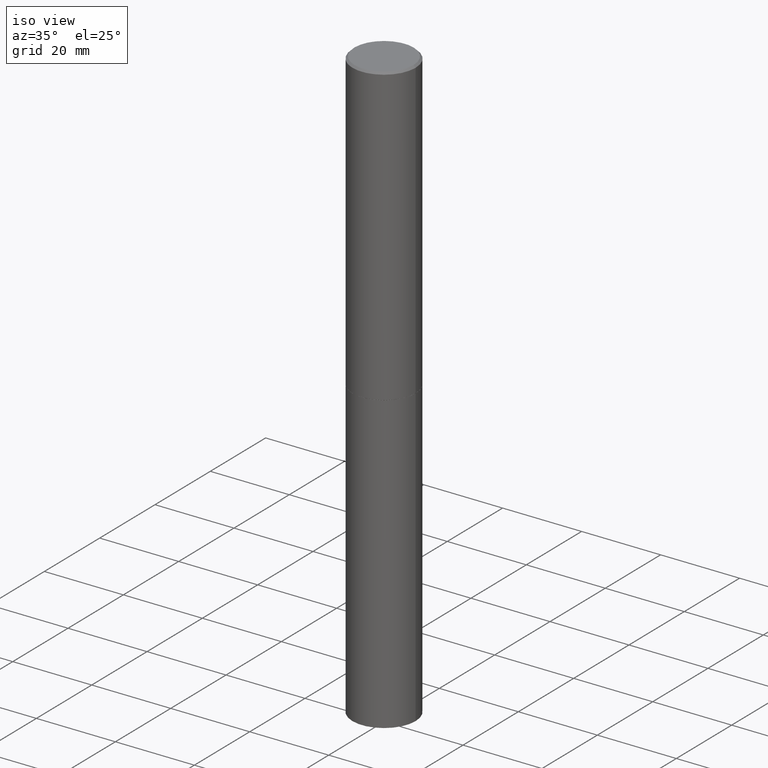
[diagram: clean part render]
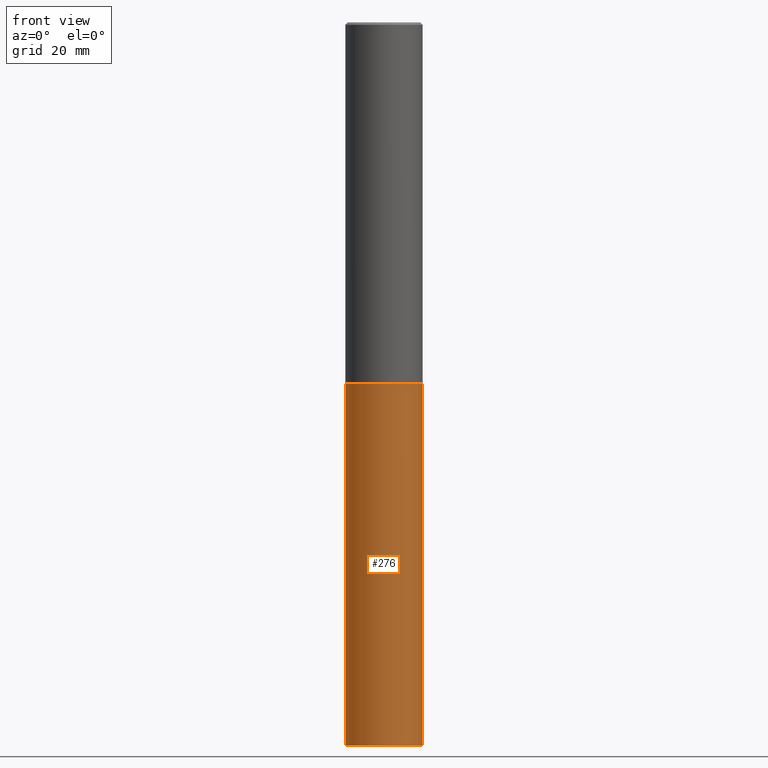
[diagram: tour spotlight — one face highlighted and labeled with its STEP entity id]
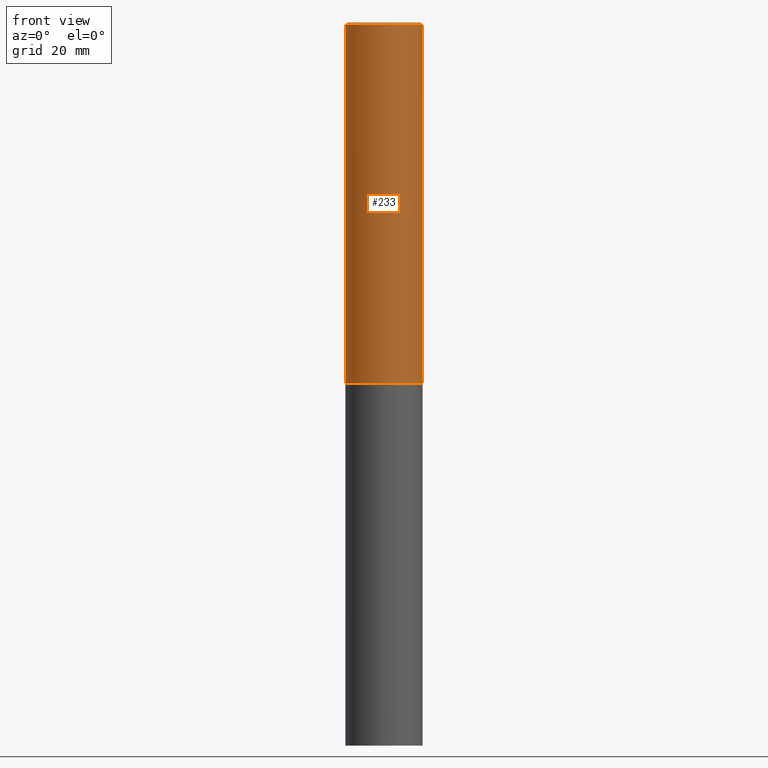
[diagram: tour spotlight — one face highlighted and labeled with its STEP entity id]
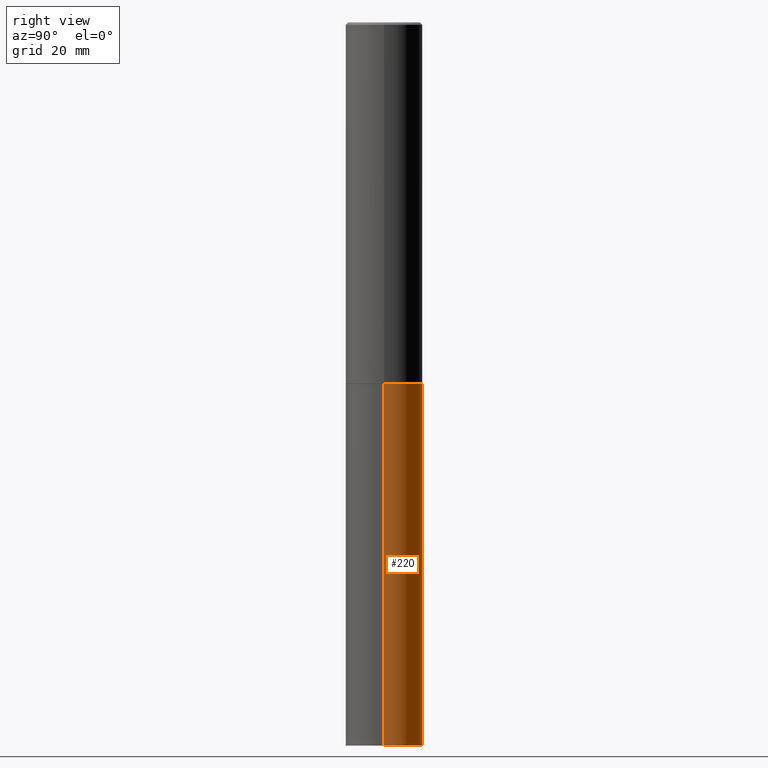
[diagram: tour spotlight — one face highlighted and labeled with its STEP entity id]
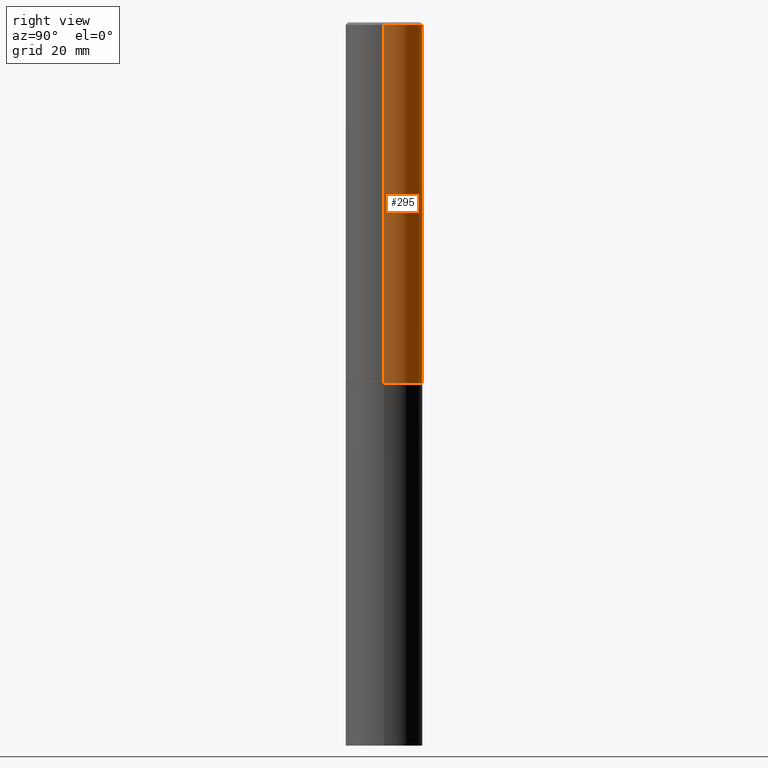
[diagram: tour spotlight — one face highlighted and labeled with its STEP entity id]
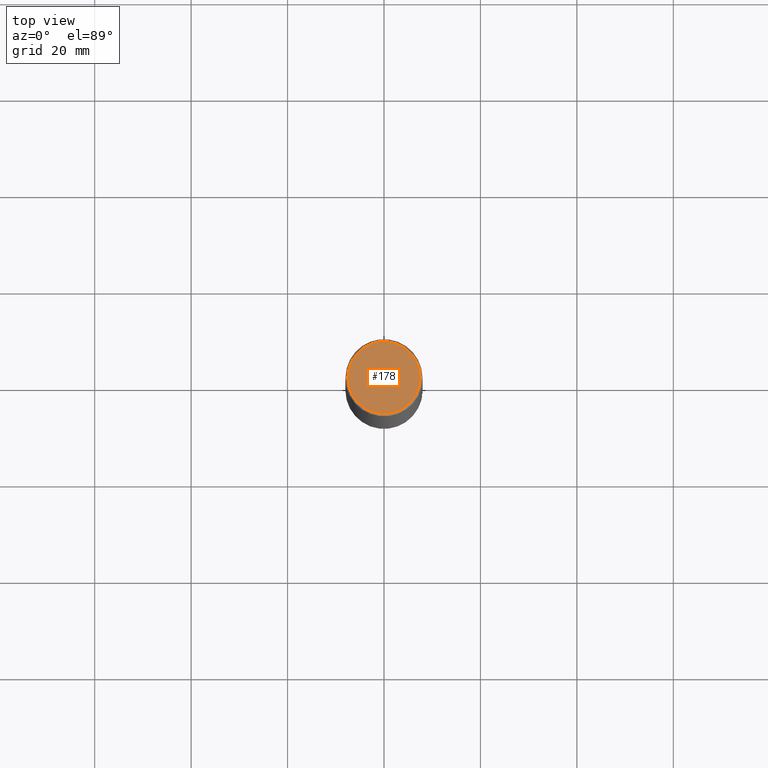
[diagram: tour spotlight — one face highlighted and labeled with its STEP entity id]
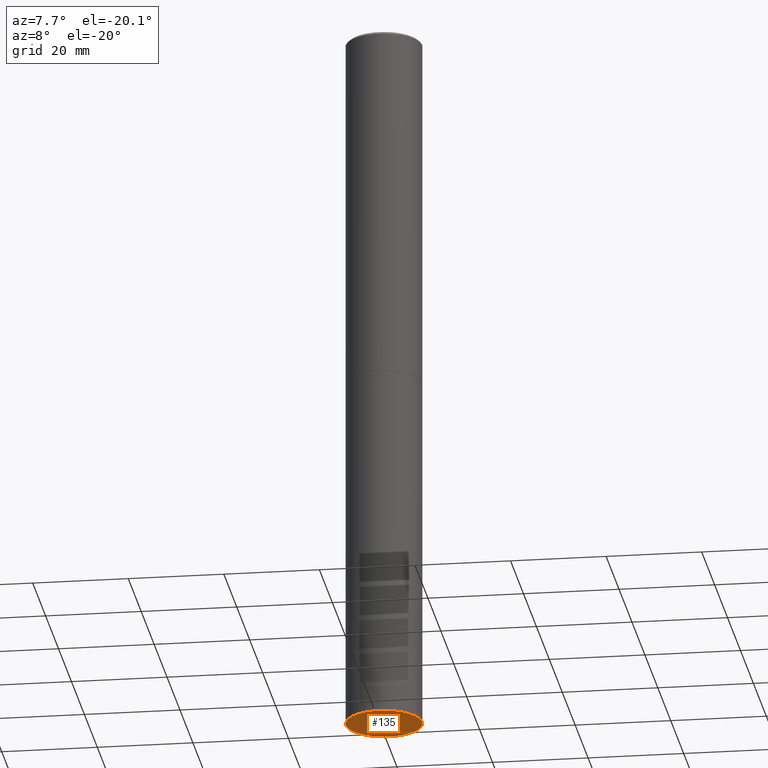
[diagram: tour spotlight — one face highlighted and labeled with its STEP entity id]
A machine part: a face-by-face anatomy tour. The part has 12 B-rep faces; the first image is the clean iso view, then the 6 largest visible faces are spotlighted one at a time (largest first), each with its STEP entity span.

Face 1 — front view, entity #276. In plain terms, the highlighted cylindrical surface (partial cylindrical patch) has radius 7.9997 mm, axis along (-0, 0, 1).
Definition (entity closure, byte-faithful):
#1 = VECTOR ( 'NONE', #200, 39.37007874015748143 ) ;
#6 = CARTESIAN_POINT ( 'NONE',  ( -0.3149500000000000077, 2.237854346276435590E-15, -1.549218606675782676E-29 ) ) ;
#7 = EDGE_CURVE ( 'NONE', #56, #255, #266, .T. ) ;
#16 = FACE_OUTER_BOUND ( 'NONE', #315, .T. ) ;
#19 = DIRECTION ( 'NONE',  ( -2.445468806185136877E-29, 3.491481338843145188E-15, 1.000000000000000000 ) ) ;
#22 = DIRECTION ( 'NONE',  ( 1.000000000000000000, -6.982962677686263555E-15, 0.000000000000000000 ) ) ;
#33 = AXIS2_PLACEMENT_3D ( 'NONE', #242, #218, #100 ) ;
#37 = LINE ( 'NONE', #245, #292 ) ;
#38 = CYLINDRICAL_SURFACE ( 'NONE', #156, 0.3149500000000000077 ) ;
#51 = ORIENTED_EDGE ( 'NONE', *, *, #7, .F. ) ;
#56 = VERTEX_POINT ( 'NONE', #297 ) ;
#84 = ORIENTED_EDGE ( 'NONE', *, *, #340, .F. ) ;
#100 = DIRECTION ( 'NONE',  ( 1.000000000000000000, -6.982962677686263555E-15, 0.000000000000000000 ) ) ;
#105 = CARTESIAN_POINT ( 'NONE',  ( 0.3149500000000000077, -2.281822714187548341E-14, -5.905499999999999972 ) ) ;
#140 = ORIENTED_EDGE ( 'NONE', *, *, #182, .T. ) ;
#156 = AXIS2_PLACEMENT_3D ( 'NONE', #184, #280, #219 ) ;
#167 = DIRECTION ( 'NONE',  ( -2.445468806185136597E-29, 3.491481338843145583E-15, 1.000000000000000000 ) ) ;
#176 = VERTEX_POINT ( 'NONE', #186 ) ;
#182 = EDGE_CURVE ( 'NONE', #272, #176, #37, .T. ) ;
#184 = CARTESIAN_POINT ( 'NONE',  ( 0.000000000000000000, 0.000000000000000000, 0.000000000000000000 ) ) ;
#186 = CARTESIAN_POINT ( 'NONE',  ( 0.3149500000000000077, -1.250858104453944331E-14, -2.952700000000000102 ) ) ;
#188 = EDGE_CURVE ( 'NONE', #56, #272, #336, .T. ) ;
#200 = DIRECTION ( 'NONE',  ( -2.445468806185136877E-29, 3.491481338843145188E-15, 1.000000000000000000 ) ) ;
#212 = CARTESIAN_POINT ( 'NONE',  ( -0.3149500000000000077, -1.322626565159373987E-14, -2.952700000000000102 ) ) ;
#218 = DIRECTION ( 'NONE',  ( -2.445468806185136597E-29, 3.491481338843145583E-15, 1.000000000000000000 ) ) ;
#219 = DIRECTION ( 'NONE',  ( 1.000000000000000000, -6.982962677686266711E-15, 4.876176775795936353E-29 ) ) ;
#229 = CARTESIAN_POINT ( 'NONE',  ( 7.220735744022852519E-29, -1.030929694920215502E-14, -2.952700000000000102 ) ) ;
#236 = AXIS2_PLACEMENT_3D ( 'NONE', #229, #167, #22 ) ;
#242 = CARTESIAN_POINT ( 'NONE',  ( 1.444171603492632270E-28, -2.061894304653819197E-14, -5.905499999999999972 ) ) ;
#245 = CARTESIAN_POINT ( 'NONE',  ( 0.3149500000000000077, -2.199284095337289871E-15, 1.535751875536930130E-29 ) ) ;
#255 = VERTEX_POINT ( 'NONE', #212 ) ;
#266 = LINE ( 'NONE', #6, #1 ) ;
#272 = VERTEX_POINT ( 'NONE', #105 ) ;
#276 = ADVANCED_FACE ( 'NONE', ( #16 ), #38, .T. ) ;
#280 = DIRECTION ( 'NONE',  ( -2.445468806185136597E-29, 3.491481338843145583E-15, 1.000000000000000000 ) ) ;
#292 = VECTOR ( 'NONE', #19, 39.37007874015748143 ) ;
#297 = CARTESIAN_POINT ( 'NONE',  ( -0.3149500000000000077, -1.322626565159373987E-14, -5.905499999999999972 ) ) ;
#305 = CIRCLE ( 'NONE', #236, 0.3149500000000000077 ) ;
#315 = EDGE_LOOP ( 'NONE', ( #51, #366, #140, #84 ) ) ;
#336 = CIRCLE ( 'NONE', #33, 0.3149500000000000077 ) ;
#340 = EDGE_CURVE ( 'NONE', #255, #176, #305, .T. ) ;
#366 = ORIENTED_EDGE ( 'NONE', *, *, #188, .T. ) ;

Face 2 — front view, entity #233. In plain terms, the highlighted cylindrical surface (partial cylindrical patch) has radius 7.9997 mm, axis along (-0, 0, 1).
Definition (entity closure, byte-faithful):
#3 = VECTOR ( 'NONE', #67, 39.37007874015748143 ) ;
#5 = CARTESIAN_POINT ( 'NONE',  ( -0.3149500000000000077, -2.949963201043651274E-15, -2.951700000000000212 ) ) ;
#13 = DIRECTION ( 'NONE',  ( -2.445468806185136877E-29, 3.491481338843145188E-15, 1.000000000000000000 ) ) ;
#25 = ORIENTED_EDGE ( 'NONE', *, *, #364, .T. ) ;
#34 = LINE ( 'NONE', #151, #294 ) ;
#43 = CYLINDRICAL_SURFACE ( 'NONE', #214, 0.3149499999999998967 ) ;
#53 = AXIS2_PLACEMENT_3D ( 'NONE', #139, #193, #259 ) ;
#54 = CARTESIAN_POINT ( 'NONE',  ( -0.3149499999999996747, 2.129454468560424206E-15, -0.02000000000000007327 ) ) ;
#63 = AXIS2_PLACEMENT_3D ( 'NONE', #120, #346, #205 ) ;
#67 = DIRECTION ( 'NONE',  ( -2.445468806185136877E-29, 3.491481338843145188E-15, 1.000000000000000000 ) ) ;
#74 = CARTESIAN_POINT ( 'NONE',  ( 0.000000000000000000, 0.000000000000000000, 0.000000000000000000 ) ) ;
#80 = VERTEX_POINT ( 'NONE', #5 ) ;
#98 = FACE_OUTER_BOUND ( 'NONE', #172, .T. ) ;
#120 = CARTESIAN_POINT ( 'NONE',  ( 4.890937612370290675E-31, -6.982962677686316261E-17, -0.02000000000000007327 ) ) ;
#139 = CARTESIAN_POINT ( 'NONE',  ( 7.218290275216666916E-29, -1.030580546786331359E-14, -2.951700000000000212 ) ) ;
#151 = CARTESIAN_POINT ( 'NONE',  ( -0.3149499999999998967, 2.237854346276434801E-15, -1.549218606675782116E-29 ) ) ;
#154 = EDGE_CURVE ( 'NONE', #362, #170, #352, .T. ) ;
#159 = DIRECTION ( 'NONE',  ( -2.445468806185136597E-29, 3.491481338843145583E-15, 1.000000000000000000 ) ) ;
#165 = EDGE_CURVE ( 'NONE', #80, #362, #34, .T. ) ;
#170 = VERTEX_POINT ( 'NONE', #273 ) ;
#172 = EDGE_LOOP ( 'NONE', ( #194, #25, #333, #317 ) ) ;
#193 = DIRECTION ( 'NONE',  ( -2.445468806185136597E-29, 3.491481338843145583E-15, 1.000000000000000000 ) ) ;
#194 = ORIENTED_EDGE ( 'NONE', *, *, #165, .F. ) ;
#205 = DIRECTION ( 'NONE',  ( 1.000000000000000000, -6.982962677686266711E-15, 0.000000000000000000 ) ) ;
#209 = CIRCLE ( 'NONE', #53, 0.3149500000000000077 ) ;
#211 = CARTESIAN_POINT ( 'NONE',  ( 0.3149499999999998967, -2.199284095337288688E-15, 1.535751875536929289E-29 ) ) ;
#214 = AXIS2_PLACEMENT_3D ( 'NONE', #74, #159, #277 ) ;
#226 = VERTEX_POINT ( 'NONE', #359 ) ;
#233 = ADVANCED_FACE ( 'NONE', ( #98 ), #43, .T. ) ;
#259 = DIRECTION ( 'NONE',  ( 1.000000000000000000, -6.982962677686263555E-15, 0.000000000000000000 ) ) ;
#273 = CARTESIAN_POINT ( 'NONE',  ( 0.3149499999999996747, -2.230543471175005083E-15, -0.02000000000000007327 ) ) ;
#277 = DIRECTION ( 'NONE',  ( 1.000000000000000000, -6.982962677686265922E-15, 4.876176775795935232E-29 ) ) ;
#294 = VECTOR ( 'NONE', #13, 39.37007874015748143 ) ;
#302 = LINE ( 'NONE', #211, #3 ) ;
#317 = ORIENTED_EDGE ( 'NONE', *, *, #154, .F. ) ;
#333 = ORIENTED_EDGE ( 'NONE', *, *, #334, .T. ) ;
#334 = EDGE_CURVE ( 'NONE', #226, #170, #302, .T. ) ;
#346 = DIRECTION ( 'NONE',  ( -2.445468806185136597E-29, 3.491481338843145583E-15, 1.000000000000000000 ) ) ;
#352 = CIRCLE ( 'NONE', #63, 0.3149499999999996747 ) ;
#359 = CARTESIAN_POINT ( 'NONE',  ( 0.3149500000000000077, -1.250508956320060346E-14, -2.951700000000000212 ) ) ;
#362 = VERTEX_POINT ( 'NONE', #54 ) ;
#364 = EDGE_CURVE ( 'NONE', #80, #226, #209, .T. ) ;

Face 3 — right view, entity #220. In plain terms, the highlighted cylindrical surface (partial cylindrical patch) has radius 7.9997 mm, axis along (-0, 0, 1).
Definition (entity closure, byte-faithful):
#1 = VECTOR ( 'NONE', #200, 39.37007874015748143 ) ;
#6 = CARTESIAN_POINT ( 'NONE',  ( -0.3149500000000000077, 2.237854346276435590E-15, -1.549218606675782676E-29 ) ) ;
#7 = EDGE_CURVE ( 'NONE', #56, #255, #266, .T. ) ;
#19 = DIRECTION ( 'NONE',  ( -2.445468806185136877E-29, 3.491481338843145188E-15, 1.000000000000000000 ) ) ;
#37 = LINE ( 'NONE', #245, #292 ) ;
#41 = FACE_OUTER_BOUND ( 'NONE', #341, .T. ) ;
#56 = VERTEX_POINT ( 'NONE', #297 ) ;
#57 = AXIS2_PLACEMENT_3D ( 'NONE', #144, #351, #203 ) ;
#83 = ORIENTED_EDGE ( 'NONE', *, *, #111, .F. ) ;
#103 = CYLINDRICAL_SURFACE ( 'NONE', #343, 0.3149500000000000077 ) ;
#105 = CARTESIAN_POINT ( 'NONE',  ( 0.3149500000000000077, -2.281822714187548341E-14, -5.905499999999999972 ) ) ;
#111 = EDGE_CURVE ( 'NONE', #176, #255, #309, .T. ) ;
#119 = AXIS2_PLACEMENT_3D ( 'NONE', #330, #158, #354 ) ;
#126 = CARTESIAN_POINT ( 'NONE',  ( 0.000000000000000000, 0.000000000000000000, 0.000000000000000000 ) ) ;
#129 = DIRECTION ( 'NONE',  ( -2.445468806185136597E-29, 3.491481338843145583E-15, 1.000000000000000000 ) ) ;
#144 = CARTESIAN_POINT ( 'NONE',  ( 7.220735744022852519E-29, -1.030929694920215502E-14, -2.952700000000000102 ) ) ;
#158 = DIRECTION ( 'NONE',  ( -2.445468806185136597E-29, 3.491481338843145583E-15, 1.000000000000000000 ) ) ;
#176 = VERTEX_POINT ( 'NONE', #186 ) ;
#182 = EDGE_CURVE ( 'NONE', #272, #176, #37, .T. ) ;
#186 = CARTESIAN_POINT ( 'NONE',  ( 0.3149500000000000077, -1.250858104453944331E-14, -2.952700000000000102 ) ) ;
#200 = DIRECTION ( 'NONE',  ( -2.445468806185136877E-29, 3.491481338843145188E-15, 1.000000000000000000 ) ) ;
#203 = DIRECTION ( 'NONE',  ( 1.000000000000000000, -6.982962677686263555E-15, 0.000000000000000000 ) ) ;
#212 = CARTESIAN_POINT ( 'NONE',  ( -0.3149500000000000077, -1.322626565159373987E-14, -2.952700000000000102 ) ) ;
#220 = ADVANCED_FACE ( 'NONE', ( #41 ), #103, .T. ) ;
#228 = EDGE_CURVE ( 'NONE', #272, #56, #304, .T. ) ;
#245 = CARTESIAN_POINT ( 'NONE',  ( 0.3149500000000000077, -2.199284095337289871E-15, 1.535751875536930130E-29 ) ) ;
#255 = VERTEX_POINT ( 'NONE', #212 ) ;
#266 = LINE ( 'NONE', #6, #1 ) ;
#272 = VERTEX_POINT ( 'NONE', #105 ) ;
#292 = VECTOR ( 'NONE', #19, 39.37007874015748143 ) ;
#293 = ORIENTED_EDGE ( 'NONE', *, *, #182, .F. ) ;
#297 = CARTESIAN_POINT ( 'NONE',  ( -0.3149500000000000077, -1.322626565159373987E-14, -5.905499999999999972 ) ) ;
#304 = CIRCLE ( 'NONE', #119, 0.3149500000000000077 ) ;
#309 = CIRCLE ( 'NONE', #57, 0.3149500000000000077 ) ;
#312 = ORIENTED_EDGE ( 'NONE', *, *, #7, .T. ) ;
#318 = ORIENTED_EDGE ( 'NONE', *, *, #228, .T. ) ;
#329 = DIRECTION ( 'NONE',  ( 1.000000000000000000, -6.982962677686266711E-15, 4.876176775795936353E-29 ) ) ;
#330 = CARTESIAN_POINT ( 'NONE',  ( 1.444171603492632270E-28, -2.061894304653819197E-14, -5.905499999999999972 ) ) ;
#341 = EDGE_LOOP ( 'NONE', ( #318, #312, #83, #293 ) ) ;
#343 = AXIS2_PLACEMENT_3D ( 'NONE', #126, #129, #329 ) ;
#351 = DIRECTION ( 'NONE',  ( -2.445468806185136597E-29, 3.491481338843145583E-15, 1.000000000000000000 ) ) ;
#354 = DIRECTION ( 'NONE',  ( 1.000000000000000000, -6.982962677686263555E-15, 0.000000000000000000 ) ) ;

Face 4 — right view, entity #295. In plain terms, the highlighted cylindrical surface (partial cylindrical patch) has radius 7.9997 mm, axis along (-0, 0, 1).
Definition (entity closure, byte-faithful):
#3 = VECTOR ( 'NONE', #67, 39.37007874015748143 ) ;
#4 = ORIENTED_EDGE ( 'NONE', *, *, #334, .F. ) ;
#5 = CARTESIAN_POINT ( 'NONE',  ( -0.3149500000000000077, -2.949963201043651274E-15, -2.951700000000000212 ) ) ;
#12 = DIRECTION ( 'NONE',  ( -2.445468806185136597E-29, 3.491481338843145583E-15, 1.000000000000000000 ) ) ;
#13 = DIRECTION ( 'NONE',  ( -2.445468806185136877E-29, 3.491481338843145188E-15, 1.000000000000000000 ) ) ;
#34 = LINE ( 'NONE', #151, #294 ) ;
#36 = DIRECTION ( 'NONE',  ( -2.445468806185136597E-29, 3.491481338843145583E-15, 1.000000000000000000 ) ) ;
#54 = CARTESIAN_POINT ( 'NONE',  ( -0.3149499999999996747, 2.129454468560424206E-15, -0.02000000000000007327 ) ) ;
#67 = DIRECTION ( 'NONE',  ( -2.445468806185136877E-29, 3.491481338843145188E-15, 1.000000000000000000 ) ) ;
#72 = EDGE_CURVE ( 'NONE', #170, #362, #358, .T. ) ;
#73 = DIRECTION ( 'NONE',  ( 1.000000000000000000, -6.982962677686265922E-15, 4.876176775795935232E-29 ) ) ;
#77 = ORIENTED_EDGE ( 'NONE', *, *, #165, .T. ) ;
#80 = VERTEX_POINT ( 'NONE', #5 ) ;
#85 = EDGE_CURVE ( 'NONE', #226, #80, #279, .T. ) ;
#86 = DIRECTION ( 'NONE',  ( 1.000000000000000000, -6.982962677686266711E-15, 0.000000000000000000 ) ) ;
#108 = EDGE_LOOP ( 'NONE', ( #321, #77, #225, #4 ) ) ;
#117 = CARTESIAN_POINT ( 'NONE',  ( 7.218290275216666916E-29, -1.030580546786331359E-14, -2.951700000000000212 ) ) ;
#125 = DIRECTION ( 'NONE',  ( 1.000000000000000000, -6.982962677686263555E-15, 0.000000000000000000 ) ) ;
#128 = DIRECTION ( 'NONE',  ( -2.445468806185136597E-29, 3.491481338843145583E-15, 1.000000000000000000 ) ) ;
#131 = FACE_OUTER_BOUND ( 'NONE', #108, .T. ) ;
#151 = CARTESIAN_POINT ( 'NONE',  ( -0.3149499999999998967, 2.237854346276434801E-15, -1.549218606675782116E-29 ) ) ;
#165 = EDGE_CURVE ( 'NONE', #80, #362, #34, .T. ) ;
#170 = VERTEX_POINT ( 'NONE', #273 ) ;
#197 = AXIS2_PLACEMENT_3D ( 'NONE', #299, #36, #86 ) ;
#211 = CARTESIAN_POINT ( 'NONE',  ( 0.3149499999999998967, -2.199284095337288688E-15, 1.535751875536929289E-29 ) ) ;
#223 = AXIS2_PLACEMENT_3D ( 'NONE', #303, #128, #73 ) ;
#225 = ORIENTED_EDGE ( 'NONE', *, *, #72, .F. ) ;
#226 = VERTEX_POINT ( 'NONE', #359 ) ;
#235 = AXIS2_PLACEMENT_3D ( 'NONE', #117, #12, #125 ) ;
#248 = CYLINDRICAL_SURFACE ( 'NONE', #223, 0.3149499999999998967 ) ;
#273 = CARTESIAN_POINT ( 'NONE',  ( 0.3149499999999996747, -2.230543471175005083E-15, -0.02000000000000007327 ) ) ;
#279 = CIRCLE ( 'NONE', #235, 0.3149500000000000077 ) ;
#294 = VECTOR ( 'NONE', #13, 39.37007874015748143 ) ;
#295 = ADVANCED_FACE ( 'NONE', ( #131 ), #248, .T. ) ;
#299 = CARTESIAN_POINT ( 'NONE',  ( 4.890937612370290675E-31, -6.982962677686316261E-17, -0.02000000000000007327 ) ) ;
#302 = LINE ( 'NONE', #211, #3 ) ;
#303 = CARTESIAN_POINT ( 'NONE',  ( 0.000000000000000000, 0.000000000000000000, 0.000000000000000000 ) ) ;
#321 = ORIENTED_EDGE ( 'NONE', *, *, #85, .T. ) ;
#334 = EDGE_CURVE ( 'NONE', #226, #170, #302, .T. ) ;
#358 = CIRCLE ( 'NONE', #197, 0.3149499999999996747 ) ;
#359 = CARTESIAN_POINT ( 'NONE',  ( 0.3149500000000000077, -1.250508956320060346E-14, -2.951700000000000212 ) ) ;
#362 = VERTEX_POINT ( 'NONE', #54 ) ;

Face 5 — top view, entity #178. In plain terms, the highlighted planar face has unit normal (0, -0, -1).
Definition (entity closure, byte-faithful):
#8 = DIRECTION ( 'NONE',  ( -2.445468806185136597E-29, 3.491481338843145583E-15, 1.000000000000000000 ) ) ;
#14 = CIRCLE ( 'NONE', #143, 0.2949499999999996014 ) ;
#31 = EDGE_CURVE ( 'NONE', #91, #313, #14, .T. ) ;
#39 = AXIS2_PLACEMENT_3D ( 'NONE', #324, #361, #325 ) ;
#78 = ORIENTED_EDGE ( 'NONE', *, *, #217, .T. ) ;
#91 = VERTEX_POINT ( 'NONE', #122 ) ;
#118 = DIRECTION ( 'NONE',  ( 1.000000000000000000, -6.982962677686266711E-15, 4.876053491004741073E-29 ) ) ;
#122 = CARTESIAN_POINT ( 'NONE',  ( 0.2949499999999996014, -2.127023677808857708E-15, 4.268512490115050658E-18 ) ) ;
#127 = DIRECTION ( 'NONE',  ( -2.445468806185136597E-29, 3.491481338843145583E-15, 1.000000000000000000 ) ) ;
#143 = AXIS2_PLACEMENT_3D ( 'NONE', #237, #8, #118 ) ;
#164 = ORIENTED_EDGE ( 'NONE', *, *, #31, .T. ) ;
#178 = ADVANCED_FACE ( 'NONE', ( #275 ), #308, .F. ) ;
#216 = CARTESIAN_POINT ( 'NONE',  ( -1.043851414335219820E-46, 1.490343170380447200E-32, 4.268512490100411279E-18 ) ) ;
#217 = EDGE_CURVE ( 'NONE', #313, #91, #274, .T. ) ;
#237 = CARTESIAN_POINT ( 'NONE',  ( -1.043851414335219820E-46, 1.490343170380447200E-32, 4.268512490100411279E-18 ) ) ;
#244 = DIRECTION ( 'NONE',  ( 1.000000000000000000, -6.982962677686266711E-15, 4.876053491004741073E-29 ) ) ;
#252 = AXIS2_PLACEMENT_3D ( 'NONE', #216, #127, #244 ) ;
#274 = CIRCLE ( 'NONE', #252, 0.2949499999999996014 ) ;
#275 = FACE_OUTER_BOUND ( 'NONE', #323, .T. ) ;
#307 = CARTESIAN_POINT ( 'NONE',  ( -0.2949499999999996014, 2.094539655171992951E-15, 4.268512490085885145E-18 ) ) ;
#308 = PLANE ( 'NONE',  #39 ) ;
#313 = VERTEX_POINT ( 'NONE', #307 ) ;
#323 = EDGE_LOOP ( 'NONE', ( #78, #164 ) ) ;
#324 = CARTESIAN_POINT ( 'NONE',  ( 2.059624841783561302E-15, 0.2949499999999996014, -1.027678164646734185E-15 ) ) ;
#325 = DIRECTION ( 'NONE',  ( -1.000000000000000000, 6.982962677686265922E-15, -4.876176775795935793E-29 ) ) ;
#361 = DIRECTION ( 'NONE',  ( 2.438088387897960049E-29, -3.491481338843145188E-15, -1.000000000000000000 ) ) ;

Face 6 — auxiliary view, entity #135. In plain terms, the highlighted planar face has unit normal (0, -0, -1).
Definition (entity closure, byte-faithful):
#21 = ORIENTED_EDGE ( 'NONE', *, *, #188, .F. ) ;
#33 = AXIS2_PLACEMENT_3D ( 'NONE', #242, #218, #100 ) ;
#56 = VERTEX_POINT ( 'NONE', #297 ) ;
#60 = DIRECTION ( 'NONE',  ( -1.000000000000000000, 6.982962677686265922E-15, -4.876176775795935793E-29 ) ) ;
#64 = PLANE ( 'NONE',  #130 ) ;
#95 = FACE_OUTER_BOUND ( 'NONE', #199, .T. ) ;
#100 = DIRECTION ( 'NONE',  ( 1.000000000000000000, -6.982962677686263555E-15, 0.000000000000000000 ) ) ;
#105 = CARTESIAN_POINT ( 'NONE',  ( 0.3149500000000000077, -2.281822714187548341E-14, -5.905499999999999972 ) ) ;
#119 = AXIS2_PLACEMENT_3D ( 'NONE', #330, #158, #354 ) ;
#130 = AXIS2_PLACEMENT_3D ( 'NONE', #181, #210, #60 ) ;
#135 = ADVANCED_FACE ( 'NONE', ( #95 ), #64, .T. ) ;
#158 = DIRECTION ( 'NONE',  ( -2.445468806185136597E-29, 3.491481338843145583E-15, 1.000000000000000000 ) ) ;
#180 = ORIENTED_EDGE ( 'NONE', *, *, #228, .F. ) ;
#181 = CARTESIAN_POINT ( 'NONE',  ( 2.199284095337433838E-15, 0.3149499999999793576, -5.905500000000000860 ) ) ;
#188 = EDGE_CURVE ( 'NONE', #56, #272, #336, .T. ) ;
#199 = EDGE_LOOP ( 'NONE', ( #180, #21 ) ) ;
#210 = DIRECTION ( 'NONE',  ( 2.438088387897960049E-29, -3.491481338843145188E-15, -1.000000000000000000 ) ) ;
#218 = DIRECTION ( 'NONE',  ( -2.445468806185136597E-29, 3.491481338843145583E-15, 1.000000000000000000 ) ) ;
#228 = EDGE_CURVE ( 'NONE', #272, #56, #304, .T. ) ;
#242 = CARTESIAN_POINT ( 'NONE',  ( 1.444171603492632270E-28, -2.061894304653819197E-14, -5.905499999999999972 ) ) ;
#272 = VERTEX_POINT ( 'NONE', #105 ) ;
#297 = CARTESIAN_POINT ( 'NONE',  ( -0.3149500000000000077, -1.322626565159373987E-14, -5.905499999999999972 ) ) ;
#304 = CIRCLE ( 'NONE', #119, 0.3149500000000000077 ) ;
#330 = CARTESIAN_POINT ( 'NONE',  ( 1.444171603492632270E-28, -2.061894304653819197E-14, -5.905499999999999972 ) ) ;
#336 = CIRCLE ( 'NONE', #33, 0.3149500000000000077 ) ;
#354 = DIRECTION ( 'NONE',  ( 1.000000000000000000, -6.982962677686263555E-15, 0.000000000000000000 ) ) ;